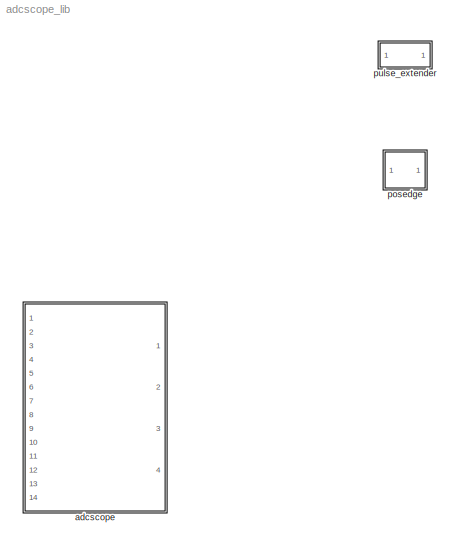
MODEL adcscope_lib
KIND library
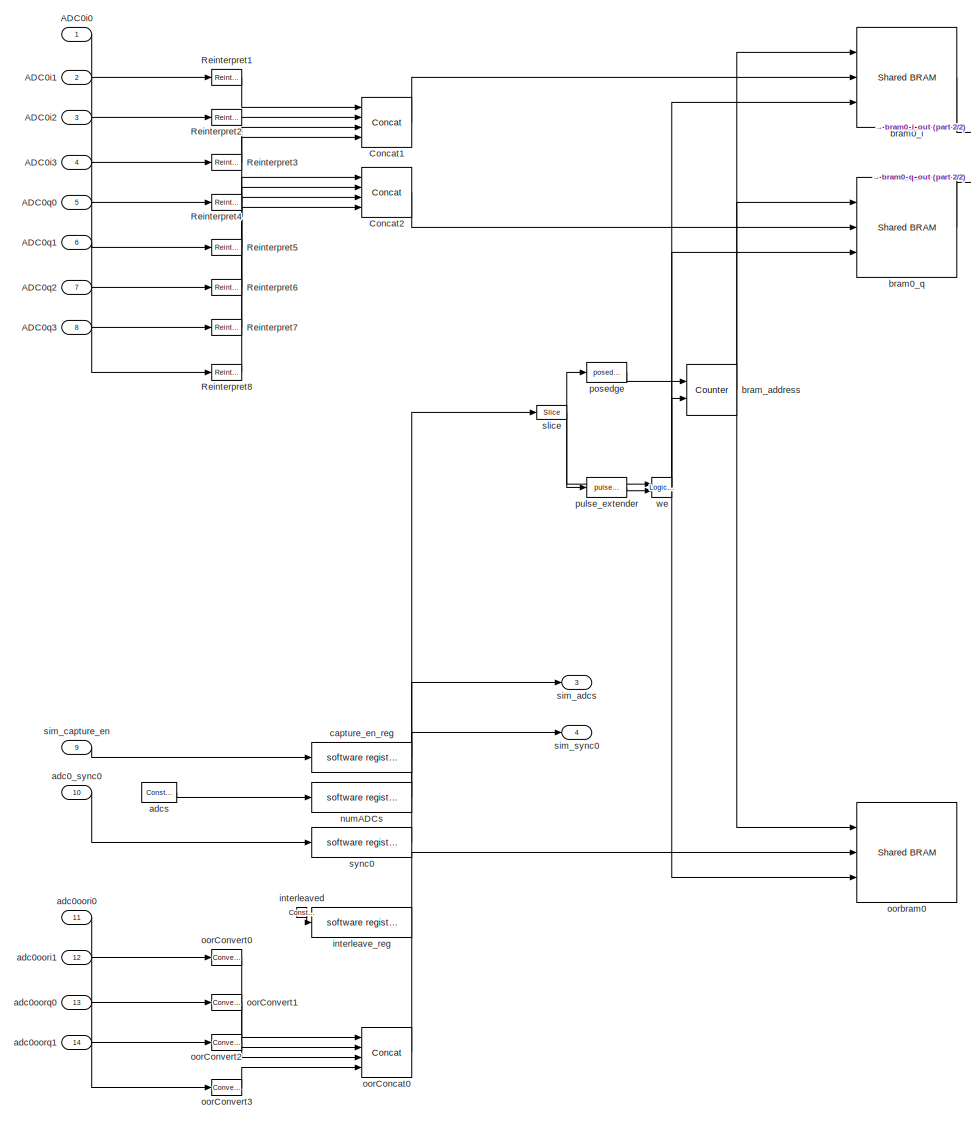
[diagram: adcscope - part 1/2, most of the canvas]
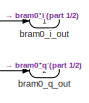
[diagram: adcscope - part 2/2, top right region]
BLOCK [SubSystem] adcscope
  MaskCallbackString = ||
  MaskEnableString = on,on,on
  MaskIconFrame = on
  MaskIconOpaque = on
  MaskIconRotate = none
  MaskIconUnits = autoscale
  MaskInitialization = adcscope_mask;
  MaskPromptString = Number of ADCs|Interleave mode (set your ADCs accordingly)|BRAM address width (2^?)
  MaskSelfModifiable = on
  MaskStyleString = popup(1|2),checkbox,edit
  MaskTabNameString = ,,
  MaskToolTipString = on,on,on
  MaskTunableValueString = on,on,on
  MaskValueString = 1|on|11
  MaskVarAliasString = ,,
  MaskVariables = num_adcs=@1;interleave=@2;address_width=@3;
  MaskVisibilityString = on,on,on
  MinAlgLoopOccurrences = off
  Ports = [14, 4]
  RTWSystemCode = Auto
  TreatAsAtomicUnit = off
BLOCK [Inport] adcscope/ADC0i0
  IconDisplay = Port number
  LatchInput = off
  Port = 1
BLOCK [Inport] adcscope/ADC0i1
  IconDisplay = Port number
  LatchInput = off
  Port = 2
BLOCK [Inport] adcscope/ADC0i2
  IconDisplay = Port number
  LatchInput = off
  Port = 3
BLOCK [Inport] adcscope/ADC0i3
  IconDisplay = Port number
  LatchInput = off
  Port = 4
BLOCK [Inport] adcscope/ADC0q0
  IconDisplay = Port number
  LatchInput = off
  Port = 5
BLOCK [Inport] adcscope/ADC0q1
  IconDisplay = Port number
  LatchInput = off
  Port = 6
BLOCK [Inport] adcscope/ADC0q2
  IconDisplay = Port number
  LatchInput = off
  Port = 7
BLOCK [Inport] adcscope/ADC0q3
  IconDisplay = Port number
  LatchInput = off
  Port = 8
BLOCK [Reference] adcscope/Concat1  REF=xbsIndex_r3/Concat
  Ports = [4, 1]
  SourceBlock = xbsIndex_r3/Concat
  SourceType = Xilinx Bus Concatenator
  dbl_ovrd = off
  explicit_period = off
  num_inputs = 4
  period = 1
BLOCK [Reference] adcscope/Concat2  REF=xbsIndex_r3/Concat
  Ports = [4, 1]
  SourceBlock = xbsIndex_r3/Concat
  SourceType = Xilinx Bus Concatenator
  dbl_ovrd = off
  explicit_period = off
  num_inputs = 4
  period = 1
BLOCK [Reference] adcscope/Reinterpret1  REF=xbsIndex_r3/Reinterpret
  Ports = [1, 1]
  SourceBlock = xbsIndex_r3/Reinterpret
  SourceType = Xilinx Type Reinterpreting Block
  arith_type = Unsigned
  bin_pt = 0
  force_arith_type = on
  force_bin_pt = on
  force_valid = on
BLOCK [Reference] adcscope/Reinterpret2  REF=xbsIndex_r3/Reinterpret
  Ports = [1, 1]
  SourceBlock = xbsIndex_r3/Reinterpret
  SourceType = Xilinx Type Reinterpreting Block
  arith_type = Unsigned
  bin_pt = 0
  force_arith_type = on
  force_bin_pt = on
  force_valid = on
BLOCK [Reference] adcscope/Reinterpret3  REF=xbsIndex_r3/Reinterpret
  Ports = [1, 1]
  SourceBlock = xbsIndex_r3/Reinterpret
  SourceType = Xilinx Type Reinterpreting Block
  arith_type = Unsigned
  bin_pt = 0
  force_arith_type = on
  force_bin_pt = on
  force_valid = on
BLOCK [Reference] adcscope/Reinterpret4  REF=xbsIndex_r3/Reinterpret
  Ports = [1, 1]
  SourceBlock = xbsIndex_r3/Reinterpret
  SourceType = Xilinx Type Reinterpreting Block
  arith_type = Unsigned
  bin_pt = 0
  force_arith_type = on
  force_bin_pt = on
  force_valid = on
BLOCK [Reference] adcscope/Reinterpret5  REF=xbsIndex_r3/Reinterpret
  Ports = [1, 1]
  SourceBlock = xbsIndex_r3/Reinterpret
  SourceType = Xilinx Type Reinterpreting Block
  arith_type = Unsigned
  bin_pt = 0
  force_arith_type = on
  force_bin_pt = on
  force_valid = on
BLOCK [Reference] adcscope/Reinterpret6  REF=xbsIndex_r3/Reinterpret
  Ports = [1, 1]
  SourceBlock = xbsIndex_r3/Reinterpret
  SourceType = Xilinx Type Reinterpreting Block
  arith_type = Unsigned
  bin_pt = 0
  force_arith_type = on
  force_bin_pt = on
  force_valid = on
BLOCK [Reference] adcscope/Reinterpret7  REF=xbsIndex_r3/Reinterpret
  Ports = [1, 1]
  SourceBlock = xbsIndex_r3/Reinterpret
  SourceType = Xilinx Type Reinterpreting Block
  arith_type = Unsigned
  bin_pt = 0
  force_arith_type = on
  force_bin_pt = on
  force_valid = on
BLOCK [Reference] adcscope/Reinterpret8  REF=xbsIndex_r3/Reinterpret
  Ports = [1, 1]
  SourceBlock = xbsIndex_r3/Reinterpret
  SourceType = Xilinx Type Reinterpreting Block
  arith_type = Unsigned
  bin_pt = 0
  force_arith_type = on
  force_bin_pt = on
  force_valid = on
BLOCK [Inport] adcscope/adc0_sync0
  IconDisplay = Port number
  LatchInput = off
  Port = 10
BLOCK [Inport] adcscope/adc0oori0
  IconDisplay = Port number
  LatchInput = off
  Port = 11
BLOCK [Inport] adcscope/adc0oori1
  IconDisplay = Port number
  LatchInput = off
  Port = 12
BLOCK [Inport] adcscope/adc0oorq0
  IconDisplay = Port number
  LatchInput = off
  Port = 13
BLOCK [Inport] adcscope/adc0oorq1
  IconDisplay = Port number
  LatchInput = off
  Port = 14
BLOCK [Reference] adcscope/adcs  REF=xbsIndex_r3/Constant
  Ports = [0, 1]
  SourceBlock = xbsIndex_r3/Constant
  SourceType = Xilinx Constant Block
  arith_type = Unsigned
  bin_pt = 0
  carry = CIN
  const = 1
  dbl_ovrd = off
  equ = P=C
  explicit_period = on
  inp1 = P
  inp2 = PCIN>>17
  iostate = 0
  n_bits = 1
  opr = +
  opselect = C
  period = 1
BLOCK [Reference] adcscope/bram0_i  REF=xps_library/Shared BRAM  (lib defined in mdl_00b5cec29cd0, mdl_02ab6ecaa3d1, +5 more)
  Ports = [3, 1]
  ShowPortLabels = on
  SourceBlock = xps_library/Shared BRAM
  SourceType = Unknown
  Tag = xps:bram
  addr_width = address_width
  arith_type = Unsigned
  data_bin_pt = 0
  data_width = 32
  init_vals = zeros(1, 2^address_width)
  sample_rate = 1
BLOCK [Outport] adcscope/bram0_i_out
  BusOutputAsStruct = off
  IconDisplay = Port number
BLOCK [Reference] adcscope/bram0_q  REF=xps_library/Shared BRAM  (lib defined in mdl_00b5cec29cd0, mdl_02ab6ecaa3d1, +5 more)
  Ports = [3, 1]
  ShowPortLabels = on
  SourceBlock = xps_library/Shared BRAM
  SourceType = Unknown
  Tag = xps:bram
  addr_width = address_width
  arith_type = Unsigned
  data_bin_pt = 0
  data_width = 32
  init_vals = zeros(1, 2^address_width)
  sample_rate = 1
BLOCK [Outport] adcscope/bram0_q_out
  BusOutputAsStruct = off
  IconDisplay = Port number
  Port = 2
BLOCK [Reference] adcscope/bram_address  REF=xbsIndex_r3/Counter
  Ports = [2, 1]
  SourceBlock = xbsIndex_r3/Counter
  SourceType = Xilinx Counter Block
  arith_type = Unsigned
  bin_pt = 0
  cnt_by_val = 1
  cnt_to = Inf
  cnt_type = Free Running
  dbl_ovrd = off
  en = on
  explicit_period = off
  gen_core = off
  load_pin = off
  n_bits = address_width
  operation = Up
  period = 1
  rst = on
  show_param = off
  start_count = 0
  use_rpm = on
  xl_area = [0, 0, 0, 0, 0, 0, 0]
  xl_use_area = off
BLOCK [Reference] adcscope/capture_en_reg  REF=xps_library/software register  (lib defined in mdl_00b5cec29cd0, mdl_02ab6ecaa3d1, +5 more)
  Ports = [1, 1]
  ShowPortLabels = on
  SourceBlock = xps_library/software register
  SourceType = Unknown
  Tag = xps:sw_reg
  arith_type = Unsigned
  bin_pt = 0
  bitwidth = 32
  gw_name = adcscope_lib_adcscope_capture_en_reg_user_data_out
  io_dir = From Processor
  sample_period = 1
BLOCK [Reference] adcscope/interleave_reg  REF=xps_library/software register  (lib defined in mdl_00b5cec29cd0, mdl_02ab6ecaa3d1, +5 more)
  Ports = [1, 1]
  ShowPortLabels = on
  SourceBlock = xps_library/software register
  SourceType = Unknown
  Tag = xps:sw_reg
  arith_type = Unsigned
  bin_pt = 0
  bitwidth = 32
  gw_name = adcscope_lib_adcscope_interleave_reg_user_data_in
  io_dir = To Processor
  sample_period = 1
BLOCK [Reference] adcscope/interleaved  REF=xbsIndex_r3/Constant
  Ports = [0, 1]
  SourceBlock = xbsIndex_r3/Constant
  SourceType = Xilinx Constant Block
  arith_type = Unsigned
  bin_pt = 0
  carry = CIN
  const = 1
  dbl_ovrd = off
  equ = P=C
  explicit_period = on
  inp1 = P
  inp2 = PCIN>>17
  iostate = 0
  n_bits = 1
  opr = +
  opselect = C
  period = 1
BLOCK [Reference] adcscope/numADCs  REF=xps_library/software register  (lib defined in mdl_00b5cec29cd0, mdl_02ab6ecaa3d1, +5 more)
  Ports = [1, 1]
  ShowPortLabels = on
  SourceBlock = xps_library/software register
  SourceType = Unknown
  Tag = xps:sw_reg
  arith_type = Unsigned
  bin_pt = 0
  bitwidth = 32
  gw_name = adcscope_lib_adcscope_numADCs_user_data_in
  io_dir = To Processor
  sample_period = 1
BLOCK [Reference] adcscope/oorConcat0  REF=xbsIndex_r3/Concat
  Ports = [4, 1]
  SourceBlock = xbsIndex_r3/Concat
  SourceType = Xilinx Bus Concatenator
  dbl_ovrd = off
  explicit_period = off
  num_inputs = 4
  period = 1
BLOCK [Reference] adcscope/oorConvert0  REF=xbsIndex_r3/Convert
  Ports = [1, 1]
  SourceBlock = xbsIndex_r3/Convert
  SourceType = Xilinx Converter Block
  arith_type = Unsigned
  bin_pt = 0
  dbl_ovrd = off
  explicit_period = off
  inserted_by_tool = off
  latency = 0
  n_bits = 8
  overflow = Wrap
  period = 1
  pipeline = off
  quantization = Truncate
  show_param = off
  xl_area = [0, 0, 0, 0, 0, 0, 0]
  xl_use_area = off
BLOCK [Reference] adcscope/oorConvert1  REF=xbsIndex_r3/Convert
  Ports = [1, 1]
  SourceBlock = xbsIndex_r3/Convert
  SourceType = Xilinx Converter Block
  arith_type = Unsigned
  bin_pt = 0
  dbl_ovrd = off
  explicit_period = off
  inserted_by_tool = off
  latency = 0
  n_bits = 8
  overflow = Wrap
  period = 1
  pipeline = off
  quantization = Truncate
  show_param = off
  xl_area = [0, 0, 0, 0, 0, 0, 0]
  xl_use_area = off
BLOCK [Reference] adcscope/oorConvert2  REF=xbsIndex_r3/Convert
  Ports = [1, 1]
  SourceBlock = xbsIndex_r3/Convert
  SourceType = Xilinx Converter Block
  arith_type = Unsigned
  bin_pt = 0
  dbl_ovrd = off
  explicit_period = off
  inserted_by_tool = off
  latency = 0
  n_bits = 8
  overflow = Wrap
  period = 1
  pipeline = off
  quantization = Truncate
  show_param = off
  xl_area = [0, 0, 0, 0, 0, 0, 0]
  xl_use_area = off
BLOCK [Reference] adcscope/oorConvert3  REF=xbsIndex_r3/Convert
  Ports = [1, 1]
  SourceBlock = xbsIndex_r3/Convert
  SourceType = Xilinx Converter Block
  arith_type = Unsigned
  bin_pt = 0
  dbl_ovrd = off
  explicit_period = off
  inserted_by_tool = off
  latency = 0
  n_bits = 8
  overflow = Wrap
  period = 1
  pipeline = off
  quantization = Truncate
  show_param = off
  xl_area = [0, 0, 0, 0, 0, 0, 0]
  xl_use_area = off
BLOCK [Reference] adcscope/oorbram0  REF=xps_library/Shared BRAM  (lib defined in mdl_00b5cec29cd0, mdl_02ab6ecaa3d1, +5 more)
  Ports = [3, 1]
  ShowPortLabels = on
  SourceBlock = xps_library/Shared BRAM
  SourceType = Unknown
  Tag = xps:bram
  addr_width = address_width
  arith_type = Unsigned
  data_bin_pt = 0
  data_width = 32
  init_vals = zeros(1, 2^address_width)
  sample_rate = 1
BLOCK [Reference] adcscope/posedge  REF=adcscope_lib/posedge  (lib defined in mdl_e6e7a0921e57)
  Ports = [1, 1]
  ShowPortLabels = on
  SourceBlock = adcscope_lib/posedge
  SourceType = Unknown
  Tag = Rising Edge Detector
  yummy = on
BLOCK [Reference] adcscope/pulse_extender  REF=adcscope_lib/pulse_extender  (lib defined in mdl_e6e7a0921e57)
  Ports = [1, 1]
  ShowPortLabels = on
  SourceBlock = adcscope_lib/pulse_extender
  SourceType = Unknown
  pulse_len = 2^address_width-1
BLOCK [Outport] adcscope/sim_adcs
  BusOutputAsStruct = off
  IconDisplay = Port number
  Port = 3
BLOCK [Inport] adcscope/sim_capture_en
  IconDisplay = Port number
  LatchInput = off
  Port = 9
BLOCK [Outport] adcscope/sim_sync0
  BusOutputAsStruct = off
  IconDisplay = Port number
  Port = 4
BLOCK [Reference] adcscope/slice  REF=xbsIndex_r3/Slice
  Ports = [1, 1]
  SourceBlock = xbsIndex_r3/Slice
  SourceType = Xilinx Slice Block
  base0 = LSB of Input
  base1 = MSB of Input
  bit0 = 0
  bit1 = 0
  boolean_output = on
  dbl_ovrd = off
  explicit_period = off
  mode = Lower Bit Location + Width
  nbits = 1
  period = 1
BLOCK [Reference] adcscope/sync0  REF=xps_library/software register  (lib defined in mdl_00b5cec29cd0, mdl_02ab6ecaa3d1, +5 more)
  Ports = [1, 1]
  ShowPortLabels = on
  SourceBlock = xps_library/software register
  SourceType = Unknown
  Tag = xps:sw_reg
  arith_type = Unsigned
  bin_pt = 0
  bitwidth = 32
  gw_name = adcscope_lib_adcscope_sync0_user_data_in
  io_dir = To Processor
  sample_period = 1
BLOCK [Reference] adcscope/we  REF=xbsIndex_r3/Logical
  Ports = [2, 1]
  SourceBlock = xbsIndex_r3/Logical
  SourceType = Xilinx Logical Block
  align_bp = on
  arith_type = Unsigned
  bin_pt = 2
  dbl_ovrd = off
  en = off
  explicit_period = off
  inputs = 2
  latency = 0
  logical_function = AND
  n_bits = 8
  period = 1
  precision = Full
  show_param = off
  xl_area = [0, 0, 0, 0, 0, 0, 0]
  xl_use_area = off
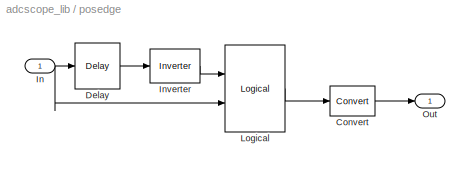
BLOCK [SubSystem] posedge
  MaskEnableString = on
  MaskIconFrame = on
  MaskIconOpaque = on
  MaskIconRotate = none
  MaskIconUnits = autoscale
  MaskPromptString = Cookies are great!
  MaskStyleString = checkbox
  MaskToolTipString = on
  MaskTunableValueString = on
  MaskValueString = on
  MaskVariables = yummy=&1;
  MaskVisibilityString = on
  MinAlgLoopOccurrences = off
  Ports = [1, 1]
  RTWSystemCode = Auto
  Tag = Rising Edge Detector
  TreatAsAtomicUnit = off
BLOCK [Reference] posedge/Convert  REF=xbsIndex_r3/Convert
  Ports = [1, 1]
  SourceBlock = xbsIndex_r3/Convert
  SourceType = Xilinx Converter Block
  arith_type = Boolean
  bin_pt = 6
  dbl_ovrd = off
  explicit_period = off
  inserted_by_tool = off
  latency = 0
  n_bits = 8
  overflow = Wrap
  period = 1
  pipeline = off
  quantization = Truncate
  show_param = off
  xl_area = [0, 0, 0, 0, 0, 0, 0]
  xl_use_area = off
BLOCK [Reference] posedge/Delay  REF=xbsIndex_r3/Delay
  Ports = [1, 1]
  SourceBlock = xbsIndex_r3/Delay
  SourceType = Xilinx Delay Block
  accept_only_valid = off
  dbl_ovrd = off
  en = off
  explicit_period = off
  init_zero = on
  latency = 1
  period = 1
  reg_retiming = off
  show_param = off
  xl_area = [0, 0, 0, 0, 0, 0, 0]
  xl_use_area = off
BLOCK [Inport] posedge/In
  IconDisplay = Port number
  LatchInput = off
  Port = 1
BLOCK [Reference] posedge/Inverter  REF=xbsIndex_r3/Inverter
  Ports = [1, 1]
  SourceBlock = xbsIndex_r3/Inverter
  SourceType = Xilinx Inverter
  dbl_ovrd = off
  en = off
  explicit_period = off
  latency = 0
  period = 1
  show_param = off
  xl_area = [0, 0, 0, 0, 0, 0, 0]
  xl_use_area = off
BLOCK [Reference] posedge/Logical  REF=xbsIndex_r3/Logical
  Ports = [2, 1]
  SourceBlock = xbsIndex_r3/Logical
  SourceType = Xilinx Logical Block
  align_bp = on
  arith_type = Unsigned
  bin_pt = 2
  dbl_ovrd = off
  en = off
  explicit_period = off
  inputs = 2
  latency = 0
  logical_function = AND
  n_bits = 8
  period = 1
  precision = Full
  show_param = off
  xl_area = [0, 0, 0, 0, 0, 0, 0]
  xl_use_area = off
BLOCK [Outport] posedge/Out
  BusOutputAsStruct = off
  IconDisplay = Port number
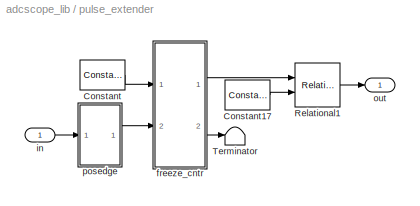
BLOCK [SubSystem] pulse_extender
  MaskEnableString = on
  MaskIconFrame = on
  MaskIconOpaque = on
  MaskIconRotate = none
  MaskIconUnits = autoscale
  MaskInitialization = bits = ceil(log2(pulse_len));
  MaskPromptString = Length of Pulse
  MaskStyleString = edit
  MaskToolTipString = on
  MaskTunableValueString = on
  MaskValueString = 2^12-1
  MaskVariables = pulse_len=@1;
  MaskVisibilityString = on
  MinAlgLoopOccurrences = off
  Ports = [1, 1]
  RTWSystemCode = Auto
  TreatAsAtomicUnit = off
BLOCK [Reference] pulse_extender/Constant  REF=xbsIndex_r3/Constant
  Ports = [0, 1]
  SourceBlock = xbsIndex_r3/Constant
  SourceType = Xilinx Constant Block
  arith_type = Boolean
  bin_pt = 0
  carry = CIN
  const = 1
  dbl_ovrd = off
  equ = P=C
  explicit_period = on
  inp1 = P
  inp2 = PCIN>>17
  iostate = 0
  n_bits = 1
  opr = +
  opselect = C
  period = 1
BLOCK [Reference] pulse_extender/Constant17  REF=xbsIndex_r3/Constant
  Ports = [0, 1]
  SourceBlock = xbsIndex_r3/Constant
  SourceType = Xilinx Constant Block
  arith_type = Unsigned
  bin_pt = 0
  carry = CIN
  const = pulse_len
  dbl_ovrd = off
  equ = P=C
  explicit_period = on
  inp1 = P
  inp2 = PCIN>>17
  iostate = 0
  n_bits = bits
  opr = +
  opselect = C
  period = 1
BLOCK [Reference] pulse_extender/Relational1  REF=xbsIndex_r3/Relational
  Ports = [2, 1]
  SourceBlock = xbsIndex_r3/Relational
  SourceType = Xilinx Relational Block
  dbl_ovrd = off
  en = off
  explicit_period = off
  latency = 0
  mode = a<b
  period = 1
  show_param = off
  xl_area = [0, 0, 0, 0, 0, 0, 0]
  xl_use_area = off
BLOCK [Terminator] pulse_extender/Terminator
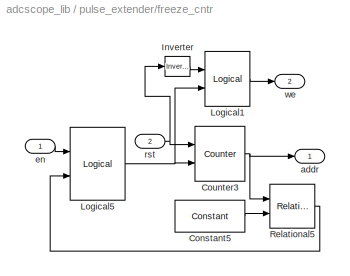
BLOCK [SubSystem] pulse_extender/freeze_cntr
  MaskEnableString = on
  MaskIconFrame = on
  MaskIconOpaque = on
  MaskIconRotate = none
  MaskIconUnits = autoscale
  MaskPromptString = Counter Length (2^?)
  MaskStyleString = edit
  MaskToolTipString = on
  MaskTunableValueString = on
  MaskValueString = bits
  MaskVariables = CounterBits=@1;
  MaskVisibilityString = on
  MinAlgLoopOccurrences = off
  Ports = [2, 2]
  RTWSystemCode = Auto
  TreatAsAtomicUnit = off
BLOCK [Reference] pulse_extender/freeze_cntr/Constant5  REF=xbsIndex_r3/Constant
  Ports = [0, 1]
  SourceBlock = xbsIndex_r3/Constant
  SourceType = Xilinx Constant Block
  arith_type = Unsigned
  bin_pt = 0
  carry = CIN
  const = 2^CounterBits - 1
  dbl_ovrd = off
  equ = P=C
  explicit_period = on
  inp1 = P
  inp2 = PCIN>>17
  iostate = 0
  n_bits = CounterBits
  opr = +
  opselect = C
  period = 1
BLOCK [Reference] pulse_extender/freeze_cntr/Counter3  REF=xbsIndex_r3/Counter
  Ports = [2, 1]
  SourceBlock = xbsIndex_r3/Counter
  SourceType = Xilinx Counter Block
  arith_type = Unsigned
  bin_pt = 0
  cnt_by_val = 1
  cnt_to = 1023
  cnt_type = Free Running
  dbl_ovrd = off
  en = on
  explicit_period = on
  gen_core = off
  load_pin = off
  n_bits = CounterBits
  operation = Up
  period = 1
  rst = on
  show_param = off
  start_count = 0
  use_rpm = on
  xl_area = [0, 0, 0, 0, 0, 0, 0]
  xl_use_area = off
BLOCK [Reference] pulse_extender/freeze_cntr/Inverter  REF=xbsIndex_r3/Inverter
  Ports = [1, 1]
  SourceBlock = xbsIndex_r3/Inverter
  SourceType = Xilinx Inverter
  dbl_ovrd = off
  en = off
  explicit_period = off
  latency = 0
  period = 1
  show_param = off
  xl_area = [0, 0, 0, 0, 0, 0, 0]
  xl_use_area = off
BLOCK [Reference] pulse_extender/freeze_cntr/Logical1  REF=xbsIndex_r3/Logical
  Ports = [2, 1]
  SourceBlock = xbsIndex_r3/Logical
  SourceType = Xilinx Logical Block
  align_bp = on
  arith_type = Unsigned
  bin_pt = 2
  dbl_ovrd = off
  en = off
  explicit_period = off
  inputs = 2
  latency = 0
  logical_function = AND
  n_bits = 8
  period = 1
  precision = Full
  show_param = off
  xl_area = [0, 0, 0, 0, 0, 0, 0]
  xl_use_area = off
BLOCK [Reference] pulse_extender/freeze_cntr/Logical5  REF=xbsIndex_r3/Logical
  Ports = [2, 1]
  SourceBlock = xbsIndex_r3/Logical
  SourceType = Xilinx Logical Block
  align_bp = on
  arith_type = Unsigned
  bin_pt = 2
  dbl_ovrd = off
  en = off
  explicit_period = off
  inputs = 2
  latency = 0
  logical_function = AND
  n_bits = 8
  period = 1
  precision = Full
  show_param = off
  xl_area = [0, 0, 0, 0, 0, 0, 0]
  xl_use_area = off
BLOCK [Reference] pulse_extender/freeze_cntr/Relational5  REF=xbsIndex_r3/Relational
  Ports = [2, 1]
  SourceBlock = xbsIndex_r3/Relational
  SourceType = Xilinx Relational Block
  dbl_ovrd = off
  en = off
  explicit_period = off
  latency = 0
  mode = a!=b
  period = 1
  show_param = off
  xl_area = [0, 0, 0, 0, 0, 0, 0]
  xl_use_area = off
BLOCK [Outport] pulse_extender/freeze_cntr/addr
  BusOutputAsStruct = off
  IconDisplay = Port number
BLOCK [Inport] pulse_extender/freeze_cntr/en
  IconDisplay = Port number
  LatchInput = off
  Port = 1
BLOCK [Inport] pulse_extender/freeze_cntr/rst
  IconDisplay = Port number
  LatchInput = off
  Port = 2
BLOCK [Outport] pulse_extender/freeze_cntr/we
  BusOutputAsStruct = off
  IconDisplay = Port number
  Port = 2
BLOCK [Inport] pulse_extender/in
  IconDisplay = Port number
  LatchInput = off
  Port = 1
BLOCK [Outport] pulse_extender/out
  BusOutputAsStruct = off
  IconDisplay = Port number
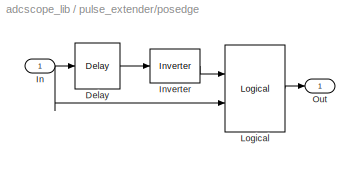
BLOCK [SubSystem] pulse_extender/posedge
  MinAlgLoopOccurrences = off
  Ports = [1, 1]
  RTWSystemCode = Auto
  Tag = Rising Edge Detector
  TreatAsAtomicUnit = off
BLOCK [Reference] pulse_extender/posedge/Delay  REF=xbsIndex_r3/Delay
  Ports = [1, 1]
  SourceBlock = xbsIndex_r3/Delay
  SourceType = Xilinx Delay Block
  accept_only_valid = off
  dbl_ovrd = off
  en = off
  explicit_period = off
  init_zero = on
  latency = 1
  period = 1
  reg_retiming = off
  show_param = off
  xl_area = [0, 0, 0, 0, 0, 0, 0]
  xl_use_area = off
BLOCK [Inport] pulse_extender/posedge/In
  IconDisplay = Port number
  LatchInput = off
  Port = 1
BLOCK [Reference] pulse_extender/posedge/Inverter  REF=xbsIndex_r3/Inverter
  Ports = [1, 1]
  SourceBlock = xbsIndex_r3/Inverter
  SourceType = Xilinx Inverter
  dbl_ovrd = off
  en = off
  explicit_period = off
  latency = 0
  period = 1
  show_param = off
  xl_area = [0, 0, 0, 0, 0, 0, 0]
  xl_use_area = off
BLOCK [Reference] pulse_extender/posedge/Logical  REF=xbsIndex_r3/Logical
  Ports = [2, 1]
  SourceBlock = xbsIndex_r3/Logical
  SourceType = Xilinx Logical Block
  align_bp = on
  arith_type = Unsigned
  bin_pt = 2
  dbl_ovrd = off
  en = off
  explicit_period = off
  inputs = 2
  latency = 0
  logical_function = AND
  n_bits = 8
  period = 1
  precision = Full
  show_param = off
  xl_area = [0, 0, 0, 0, 0, 0, 0]
  xl_use_area = off
BLOCK [Outport] pulse_extender/posedge/Out
  BusOutputAsStruct = off
  IconDisplay = Port number
LINE adcscope/ADC0i0:1 -> adcscope/Reinterpret1:1
LINE adcscope/ADC0i1:1 -> adcscope/Reinterpret2:1
LINE adcscope/ADC0i2:1 -> adcscope/Reinterpret3:1
LINE adcscope/ADC0i3:1 -> adcscope/Reinterpret4:1
LINE adcscope/ADC0q0:1 -> adcscope/Reinterpret5:1
LINE adcscope/ADC0q1:1 -> adcscope/Reinterpret6:1
LINE adcscope/ADC0q2:1 -> adcscope/Reinterpret7:1
LINE adcscope/ADC0q3:1 -> adcscope/Reinterpret8:1
LINE adcscope/Concat1:1 -> adcscope/bram0_i:2
LINE adcscope/Concat2:1 -> adcscope/bram0_q:2
LINE adcscope/Reinterpret1:1 -> adcscope/Concat1:1
LINE adcscope/Reinterpret2:1 -> adcscope/Concat1:2
LINE adcscope/Reinterpret3:1 -> adcscope/Concat1:3
LINE adcscope/Reinterpret4:1 -> adcscope/Concat1:4
LINE adcscope/Reinterpret5:1 -> adcscope/Concat2:1
LINE adcscope/Reinterpret6:1 -> adcscope/Concat2:2
LINE adcscope/Reinterpret7:1 -> adcscope/Concat2:3
LINE adcscope/Reinterpret8:1 -> adcscope/Concat2:4
LINE adcscope/adc0_sync0:1 -> adcscope/sync0:1
LINE adcscope/adc0oori0:1 -> adcscope/oorConvert0:1
LINE adcscope/adc0oori1:1 -> adcscope/oorConvert1:1
LINE adcscope/adc0oorq0:1 -> adcscope/oorConvert2:1
LINE adcscope/adc0oorq1:1 -> adcscope/oorConvert3:1
LINE adcscope/adcs:1 -> adcscope/numADCs:1
LINE adcscope/bram0_i:1 -> adcscope/bram0_i_out:1
LINE adcscope/bram0_q:1 -> adcscope/bram0_q_out:1
NET adcscope/bram_address:1 -> adcscope/bram0_i:1, adcscope/bram0_q:1, adcscope/oorbram0:1
LINE adcscope/capture_en_reg:1 -> adcscope/slice:1
LINE adcscope/interleaved:1 -> adcscope/interleave_reg:1
LINE adcscope/numADCs:1 -> adcscope/sim_adcs:1
LINE adcscope/oorConcat0:1 -> adcscope/oorbram0:2
LINE adcscope/oorConvert0:1 -> adcscope/oorConcat0:1
LINE adcscope/oorConvert1:1 -> adcscope/oorConcat0:2
LINE adcscope/oorConvert2:1 -> adcscope/oorConcat0:3
LINE adcscope/oorConvert3:1 -> adcscope/oorConcat0:4
LINE adcscope/posedge:1 -> adcscope/bram_address:1
LINE adcscope/pulse_extender:1 -> adcscope/we:2
LINE adcscope/sim_capture_en:1 -> adcscope/capture_en_reg:1
NET adcscope/slice:1 -> adcscope/posedge:1, adcscope/pulse_extender:1, adcscope/we:1
LINE adcscope/sync0:1 -> adcscope/sim_sync0:1
NET adcscope/we:1 -> adcscope/bram0_i:3, adcscope/bram0_q:3, adcscope/bram_address:2, adcscope/oorbram0:3
LINE posedge/Convert:1 -> posedge/Out:1
LINE posedge/Delay:1 -> posedge/Inverter:1
NET posedge/In:1 -> posedge/Delay:1, posedge/Logical:2
LINE posedge/Inverter:1 -> posedge/Logical:1
LINE posedge/Logical:1 -> posedge/Convert:1
LINE pulse_extender/Constant17:1 -> pulse_extender/Relational1:2
LINE pulse_extender/Constant:1 -> pulse_extender/freeze_cntr:1
LINE pulse_extender/Relational1:1 -> pulse_extender/out:1
LINE pulse_extender/freeze_cntr/Constant5:1 -> pulse_extender/freeze_cntr/Relational5:2
NET pulse_extender/freeze_cntr/Counter3:1 -> pulse_extender/freeze_cntr/Relational5:1, pulse_extender/freeze_cntr/addr:1
LINE pulse_extender/freeze_cntr/Inverter:1 -> pulse_extender/freeze_cntr/Logical1:1
LINE pulse_extender/freeze_cntr/Logical1:1 -> pulse_extender/freeze_cntr/we:1
NET pulse_extender/freeze_cntr/Logical5:1 -> pulse_extender/freeze_cntr/Counter3:2, pulse_extender/freeze_cntr/Logical1:2
LINE pulse_extender/freeze_cntr/Relational5:1 -> pulse_extender/freeze_cntr/Logical5:2
LINE pulse_extender/freeze_cntr/en:1 -> pulse_extender/freeze_cntr/Logical5:1
NET pulse_extender/freeze_cntr/rst:1 -> pulse_extender/freeze_cntr/Counter3:1, pulse_extender/freeze_cntr/Inverter:1
LINE pulse_extender/freeze_cntr:1 -> pulse_extender/Relational1:1
LINE pulse_extender/freeze_cntr:2 -> pulse_extender/Terminator:1
LINE pulse_extender/in:1 -> pulse_extender/posedge:1
LINE pulse_extender/posedge/Delay:1 -> pulse_extender/posedge/Inverter:1
NET pulse_extender/posedge/In:1 -> pulse_extender/posedge/Delay:1, pulse_extender/posedge/Logical:2
LINE pulse_extender/posedge/Inverter:1 -> pulse_extender/posedge/Logical:1
LINE pulse_extender/posedge/Logical:1 -> pulse_extender/posedge/Out:1
LINE pulse_extender/posedge:1 -> pulse_extender/freeze_cntr:2
note: NET lines group one-source signal fan-out (src -> all destinations, sorted); 1:1 wires keep LINE
